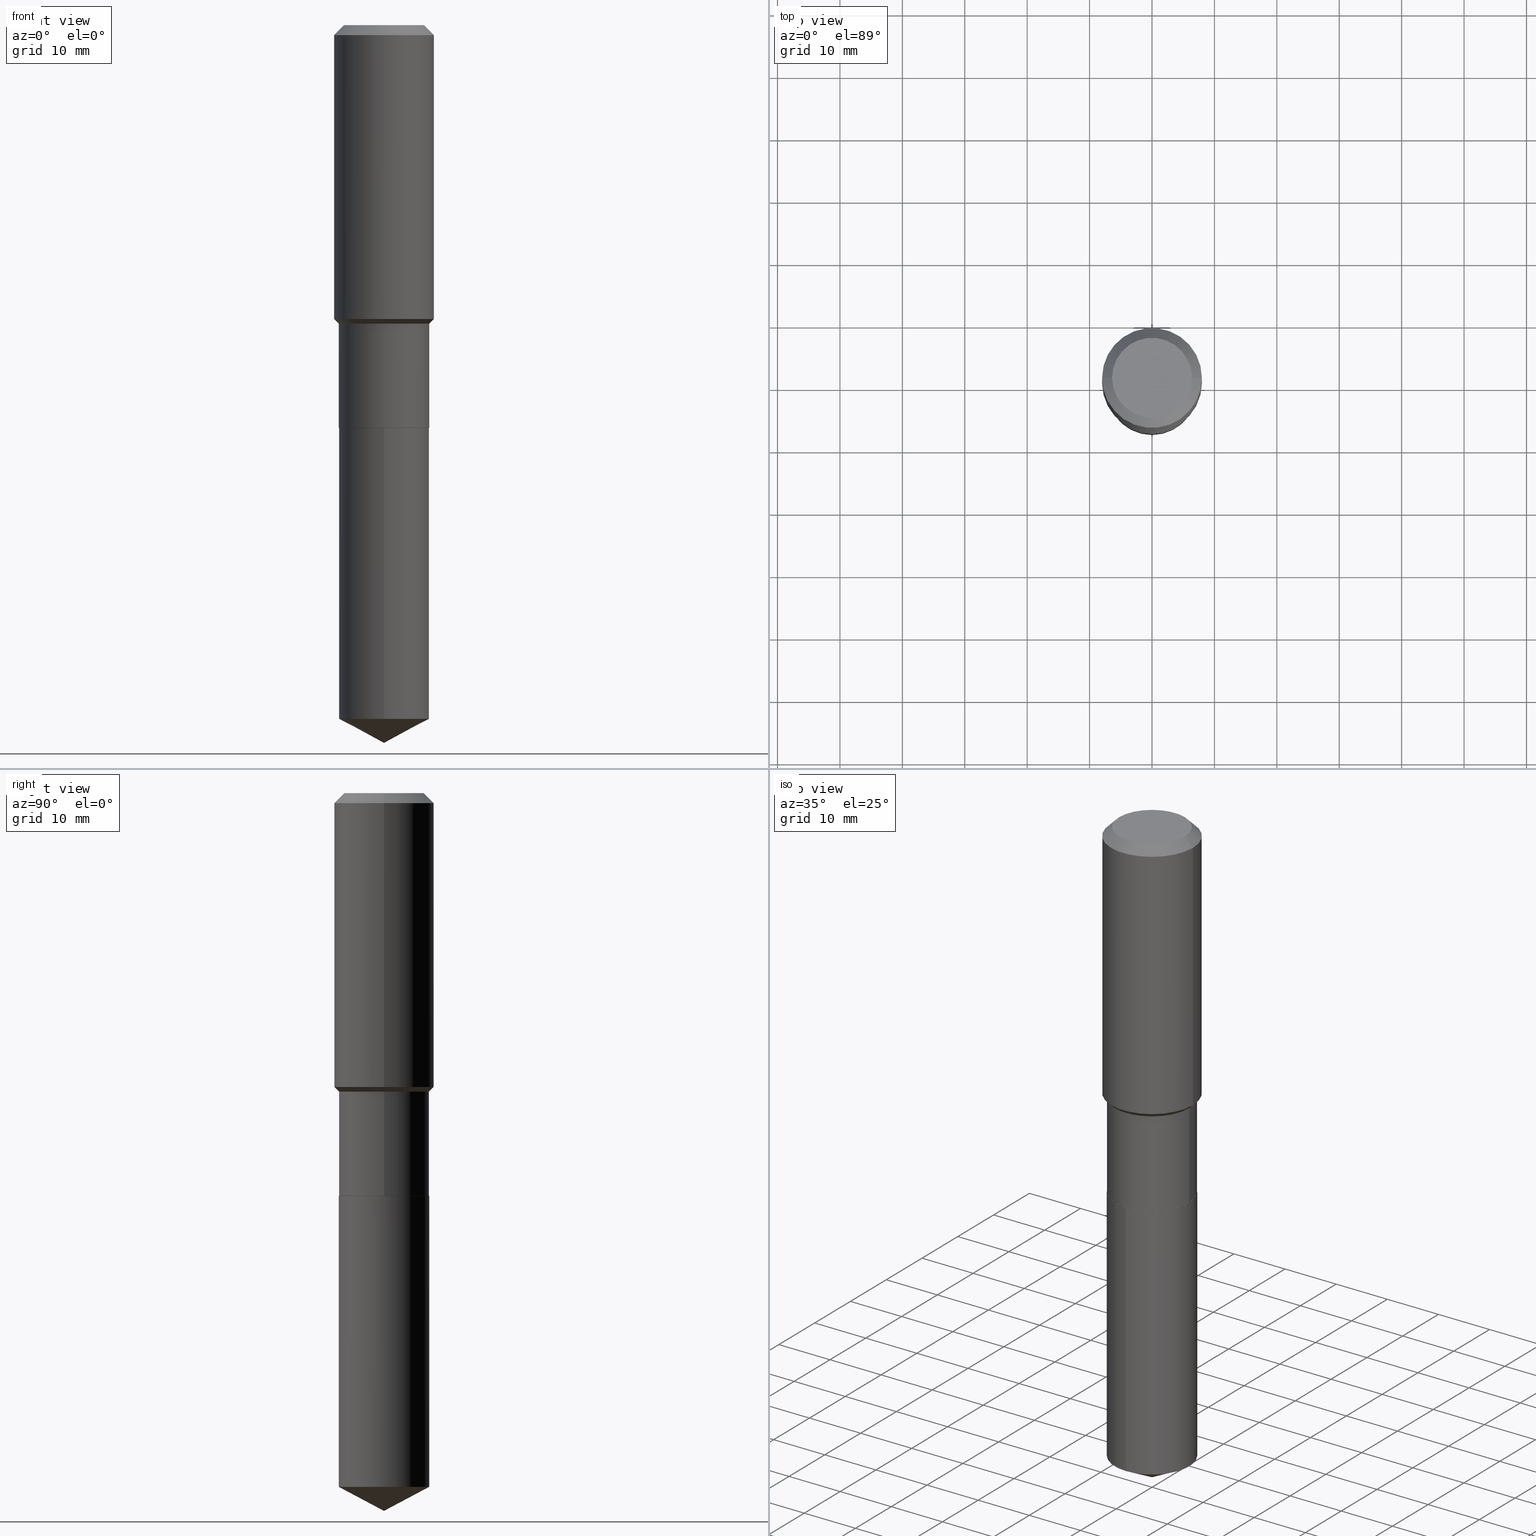
[diagram: canonical four-view strip — front | top / right | iso, engineering-drawing reading convention]
A machine part, canonical four-view strip (front | top / right | iso — engineering-drawing reading convention). The complete STEP part file that produces these views, byte-faithful:
ISO-10303-21;
HEADER;
FILE_DESCRIPTION (( 'STEP AP203' ),
    '1' );
FILE_NAME ('67697.STEP',
    '2024-04-25T09:42:38',
    ( '' ),
    ( '' ),
    'SwSTEP 2.0',
    'SolidWorks 2023',
    '' );
FILE_SCHEMA (( 'CONFIG_CONTROL_DESIGN' ));
ENDSEC;

DATA;
#1 = EDGE_LOOP ( 'NONE', ( #56, #4, #338, #199 ) ) ;
#2 = DIRECTION ( 'NONE',  ( -2.445654511674709390E-29, 3.491215398012376990E-15, 1.000000000000000000 ) ) ;
#3 = LINE ( 'NONE', #375, #60 ) ;
#4 = ORIENTED_EDGE ( 'NONE', *, *, #433, .T. ) ;
#5 = CARTESIAN_POINT ( 'NONE',  ( 0.2854499999999999260, -8.567396909253302236E-15, -1.882899999999999796 ) ) ;
#6 = AXIS2_PLACEMENT_3D ( 'NONE', #238, #385, #389 ) ;
#7 = ADVANCED_FACE ( 'NONE', ( #203 ), #353, .T. ) ;
#8 = ORIENTED_EDGE ( 'NONE', *, *, #330, .T. ) ;
#9 = ADVANCED_FACE ( 'NONE', ( #122 ), #239, .T. ) ;
#10 = CARTESIAN_POINT ( 'NONE',  ( -1.993286696345482241E-15, -0.2854500000000088078, -2.539399999999998769 ) ) ;
#11 = APPROVAL_STATUS ( 'not_yet_approved' ) ;
#12 = ORIENTED_EDGE ( 'NONE', *, *, #119, .F. ) ;
#13 = VECTOR ( 'NONE', #253, 39.37007874015748143 ) ;
#14 = ORIENTED_EDGE ( 'NONE', *, *, #329, .T. ) ;
#15 = DIRECTION ( 'NONE',  ( 1.000000000000000000, -6.982962677686266711E-15, 4.876115136096691995E-29 ) ) ;
#16 = DESIGN_CONTEXT ( 'detailed design', #227, 'design' ) ;
#17 = EDGE_CURVE ( 'NONE', #110, #309, #278, .T. ) ;
#18 = LINE ( 'NONE', #294, #324 ) ;
#19 = VECTOR ( 'NONE', #307, 39.37007874015748143 ) ;
#20 = PRODUCT_DEFINITION ( 'UNKNOWN', '', #197, #16 ) ;
#21 = AXIS2_PLACEMENT_3D ( 'NONE', #229, #151, #302 ) ;
#22 = CARTESIAN_POINT ( 'NONE',  ( -0.2519600000000000173, 1.869391481036695286E-15, 3.855188123703182704E-18 ) ) ;
#23 = CIRCLE ( 'NONE', #448, 0.2854499999999999815 ) ;
#24 = ORIENTED_EDGE ( 'NONE', *, *, #172, .F. ) ;
#25 = CC_DESIGN_PERSON_AND_ORGANIZATION_ASSIGNMENT ( #442, #88, ( #197 ) ) ;
#26 = CARTESIAN_POINT ( 'NONE',  ( 0.2849499999999999811, -1.085606292686498256E-14, -2.539399999999999658 ) ) ;
#27 = EDGE_LOOP ( 'NONE', ( #372, #343, #68, #460 ) ) ;
#28 = DIRECTION ( 'NONE',  ( 0.7071067811865453523, -7.319954787623248157E-15, -0.7071067811865496822 ) ) ;
#29 = CARTESIAN_POINT ( 'NONE',  ( 1.070128100905527205E-28, -1.527761786151748946E-14, -4.375823542732231175 ) ) ;
#30 = VERTEX_POINT ( 'NONE', #104 ) ;
#31 = DIRECTION ( 'NONE',  ( 1.000000000000000000, -6.982962677686265922E-15, 4.876176775795935232E-29 ) ) ;
#32 = EDGE_CURVE ( 'NONE', #295, #156, #287, .T. ) ;
#33 = DIRECTION ( 'NONE',  ( -2.445468806185136597E-29, 3.491481338843145583E-15, 1.000000000000000000 ) ) ;
#34 = AXIS2_PLACEMENT_3D ( 'NONE', #265, #267, #301 ) ;
#35 = CC_DESIGN_DATE_AND_TIME_ASSIGNMENT ( #75, #168, ( #20 ) ) ;
#36 = DIRECTION ( 'NONE',  ( -2.445468806185136597E-29, 3.491481338843145583E-15, 1.000000000000000000 ) ) ;
#37 = CARTESIAN_POINT ( 'NONE',  ( -9.427742298522569579E-47, 1.346031739168368629E-32, 3.855188123715871501E-18 ) ) ;
#38 = EDGE_CURVE ( 'NONE', #30, #380, #217, .T. ) ;
#39 = VECTOR ( 'NONE', #65, 39.37007874015748143 ) ;
#40 = EDGE_LOOP ( 'NONE', ( #423, #46, #485, #296 ) ) ;
#41 = CARTESIAN_POINT ( 'NONE',  ( 6.210023486426534966E-29, -8.866267711858282579E-15, -2.539399999999999658 ) ) ;
#42 = ORIENTED_EDGE ( 'NONE', *, *, #330, .F. ) ;
#43 = PERSON_AND_ORGANIZATION ( #344, #289 ) ;
#44 = ORIENTED_EDGE ( 'NONE', *, *, #379, .F. ) ;
#45 = VERTEX_POINT ( 'NONE', #100 ) ;
#46 = ORIENTED_EDGE ( 'NONE', *, *, #420, .F. ) ;
#47 = EDGE_LOOP ( 'NONE', ( #117, #457, #469, #216 ) ) ;
#48 = CARTESIAN_POINT ( 'NONE',  ( 6.210023486426534966E-29, -8.866267711858282579E-15, -2.539399999999999658 ) ) ;
#49 = FACE_OUTER_BOUND ( 'NONE', #269, .T. ) ;
#50 = PERSON_AND_ORGANIZATION_ROLE ( 'design_owner' ) ;
#51 = CIRCLE ( 'NONE', #323, 0.2854499999999999815 ) ;
#52 = FACE_OUTER_BOUND ( 'NONE', #417, .T. ) ;
#53 = CARTESIAN_POINT ( 'NONE',  ( 6.210023486426534966E-29, -8.866267711858282579E-15, -2.539399999999999658 ) ) ;
#54 = CARTESIAN_POINT ( 'NONE',  ( 6.210023486426534966E-29, -8.866267711858282579E-15, -2.539399999999999658 ) ) ;
#55 = PERSON_AND_ORGANIZATION ( #344, #289 ) ;
#56 = ORIENTED_EDGE ( 'NONE', *, *, #198, .F. ) ;
#57 = CARTESIAN_POINT ( 'NONE',  ( 0.3149500000000002298, -8.670395608749174891E-15, -1.853399999999999492 ) ) ;
#58 = EDGE_CURVE ( 'NONE', #123, #110, #445, .T. ) ;
#59 = DIRECTION ( 'NONE',  ( -1.000000000000000000, 6.982962677686266711E-15, 0.000000000000000000 ) ) ;
#60 = VECTOR ( 'NONE', #149, 39.37007874015748143 ) ;
#61 = ADVANCED_FACE ( 'NONE', ( #113 ), #409, .T. ) ;
#62 = CARTESIAN_POINT ( 'NONE',  ( 4.604573215165993234E-29, -6.574110212907758463E-15, -1.882899999999999796 ) ) ;
#63 = DIRECTION ( 'NONE',  ( -2.445468806185136597E-29, 3.491481338843145583E-15, 1.000000000000000000 ) ) ;
#64 = SECURITY_CLASSIFICATION ( '', '', #91 ) ;
#65 = DIRECTION ( 'NONE',  ( -0.7071067811865453523, 2.468850131082234184E-15, -0.7071067811865496822 ) ) ;
#66 = VERTEX_POINT ( 'NONE', #148 ) ;
#67 = CARTESIAN_POINT ( 'NONE',  ( 0.2854499999999999260, -8.567396909253302236E-15, -1.882899999999999796 ) ) ;
#68 = ORIENTED_EDGE ( 'NONE', *, *, #259, .F. ) ;
#69 = CARTESIAN_POINT ( 'NONE',  ( 0.2849499999999999811, -1.085606292686498256E-14, -2.539399999999999658 ) ) ;
#70 = CARTESIAN_POINT ( 'NONE',  ( 1.107295363746742606E-28, -1.580682683604083442E-14, -4.527599999999999625 ) ) ;
#71 = AXIS2_PLACEMENT_3D ( 'NONE', #237, #421, #273 ) ;
#72 = LOCAL_TIME ( 5, 42, 38.00000000000000000, #364 ) ;
#73 = DIRECTION ( 'NONE',  ( 1.000000000000000000, 0.000000000000000000, 0.000000000000000000 ) ) ;
#74 = EDGE_CURVE ( 'NONE', #66, #45, #412, .T. ) ;
#75 = DATE_AND_TIME ( #276, #157 ) ;
#76 = PLANE ( 'NONE',  #204 ) ;
#77 = AXIS2_PLACEMENT_3D ( 'NONE', #382, #36, #192 ) ;
#78 = APPLICATION_PROTOCOL_DEFINITION ( 'international standard', 'config_control_design', 1994, #127 ) ;
#79 = ORIENTED_EDGE ( 'NONE', *, *, #371, .F. ) ;
#80 =( GEOMETRIC_REPRESENTATION_CONTEXT ( 3 ) GLOBAL_UNCERTAINTY_ASSIGNED_CONTEXT ( ( #155 ) ) GLOBAL_UNIT_ASSIGNED_CONTEXT ( ( #303, #384, #422 ) ) REPRESENTATION_CONTEXT ( 'NONE', 'WORKASPACE' ) );
#81 = COORDINATED_UNIVERSAL_TIME_OFFSET ( 5, 0, .BEHIND. ) ;
#82 = EDGE_LOOP ( 'NONE', ( #392, #355, #173, #138 ) ) ;
#83 = DIRECTION ( 'NONE',  ( -2.445468806185136877E-29, 3.491481338843145188E-15, 1.000000000000000000 ) ) ;
#84 = ADVANCED_BREP_SHAPE_REPRESENTATION ( '67697', ( #326, #331, #128 ), #80 ) ;
#85 = DIRECTION ( 'NONE',  ( -2.445468806185136597E-29, 3.491481338843145583E-15, 1.000000000000000000 ) ) ;
#86 = CARTESIAN_POINT ( 'NONE',  ( 0.000000000000000000, 0.000000000000000000, 0.000000000000000000 ) ) ;
#87 = PLANE ( 'NONE',  #340 ) ;
#88 = PERSON_AND_ORGANIZATION_ROLE ( 'creator' ) ;
#89 = ORIENTED_EDGE ( 'NONE', *, *, #158, .F. ) ;
#90 = AXIS2_PLACEMENT_3D ( 'NONE', #37, #194, #350 ) ;
#91 = SECURITY_CLASSIFICATION_LEVEL ( 'unclassified' ) ;
#92 = ORIENTED_EDGE ( 'NONE', *, *, #102, .F. ) ;
#93 = FACE_OUTER_BOUND ( 'NONE', #47, .T. ) ;
#94 = DIRECTION ( 'NONE',  ( 1.000000000000000000, -6.982962677686266711E-15, 0.000000000000000000 ) ) ;
#95 = DIRECTION ( 'NONE',  ( -2.445468806185136597E-29, 3.491481338843145583E-15, 1.000000000000000000 ) ) ;
#96 = CARTESIAN_POINT ( 'NONE',  ( -0.3149500000000001743, 2.237854346276436774E-15, -1.549218606675783237E-29 ) ) ;
#97 = CIRCLE ( 'NONE', #71, 0.3149500000000002298 ) ;
#98 = LOCAL_TIME ( 5, 42, 38.00000000000000000, #235 ) ;
#99 = CARTESIAN_POINT ( 'NONE',  ( -0.3149500000000000077, -1.107665615196370664E-15, -0.06299000000000037902 ) ) ;
#100 = CARTESIAN_POINT ( 'NONE',  ( 2.028244239227312346E-15, 0.2854499999999847160, -4.375823542732232951 ) ) ;
#101 = ORIENTED_EDGE ( 'NONE', *, *, #347, .T. ) ;
#102 = EDGE_CURVE ( 'NONE', #262, #241, #467, .T. ) ;
#103 = CARTESIAN_POINT ( 'NONE',  ( 0.2519600000000000173, -2.054606664725195058E-15, 3.855188123729206640E-18 ) ) ;
#104 = CARTESIAN_POINT ( 'NONE',  ( 2.028244239227313134E-15, 0.2854499999999910997, -2.539400000000000990 ) ) ;
#105 = VECTOR ( 'NONE', #319, 39.37007874015748143 ) ;
#106 = AXIS2_PLACEMENT_3D ( 'NONE', #468, #440, #362 ) ;
#107 = CARTESIAN_POINT ( 'NONE',  ( 4.532431885383530839E-29, -6.471111513411883442E-15, -1.853399999999999492 ) ) ;
#108 = LINE ( 'NONE', #26, #19 ) ;
#109 = ADVANCED_FACE ( 'NONE', ( #213 ), #255, .T. ) ;
#110 = VERTEX_POINT ( 'NONE', #99 ) ;
#111 = CARTESIAN_POINT ( 'NONE',  ( 0.2854500000000000370, -1.085780866753440485E-14, -2.538899999999999491 ) ) ;
#112 = ADVANCED_FACE ( 'NONE', ( #370 ), #304, .T. ) ;
#113 = FACE_OUTER_BOUND ( 'NONE', #464, .T. ) ;
#114 = VECTOR ( 'NONE', #222, 39.37007874015748143 ) ;
#115 = FACE_OUTER_BOUND ( 'NONE', #404, .T. ) ;
#116 = ORIENTED_EDGE ( 'NONE', *, *, #327, .T. ) ;
#117 = ORIENTED_EDGE ( 'NONE', *, *, #190, .T. ) ;
#118 = CC_DESIGN_PERSON_AND_ORGANIZATION_ASSIGNMENT ( #352, #315, ( #20 ) ) ;
#119 = EDGE_CURVE ( 'NONE', #490, #241, #133, .T. ) ;
#120 = EDGE_CURVE ( 'NONE', #241, #295, #3, .T. ) ;
#121 = EDGE_LOOP ( 'NONE', ( #450, #434, #387, #139 ) ) ;
#122 = FACE_OUTER_BOUND ( 'NONE', #27, .T. ) ;
#123 = VERTEX_POINT ( 'NONE', #416 ) ;
#124 = EDGE_CURVE ( 'NONE', #311, #262, #108, .T. ) ;
#125 = CONICAL_SURFACE ( 'NONE', #403, 0.2849499999999999811, 0.7853981633973118326 ) ;
#126 = EDGE_CURVE ( 'NONE', #241, #262, #187, .T. ) ;
#127 = APPLICATION_CONTEXT ( 'configuration controlled 3d designs of mechanical parts and assemblies' ) ;
#128 = AXIS2_PLACEMENT_3D ( 'NONE', #86, #161, #73 ) ;
#129 = ADVANCED_FACE ( 'NONE', ( #115 ), #125, .T. ) ;
#130 = DATE_AND_TIME ( #325, #72 ) ;
#131 = ADVANCED_FACE ( 'NONE', ( #342 ), #196, .T. ) ;
#132 = EDGE_CURVE ( 'NONE', #295, #123, #335, .T. ) ;
#133 = LINE ( 'NONE', #449, #349 ) ;
#134 = LINE ( 'NONE', #136, #367 ) ;
#135 = DIRECTION ( 'NONE',  ( 6.273719981627766865E-15, 0.8829475928589298750, 0.4694715627858851992 ) ) ;
#136 = CARTESIAN_POINT ( 'NONE',  ( 0.3149500000000000077, -2.380642253931875190E-15, -0.06299000000000037902 ) ) ;
#137 = APPROVAL_ROLE ( '' ) ;
#138 = ORIENTED_EDGE ( 'NONE', *, *, #393, .F. ) ;
#139 = ORIENTED_EDGE ( 'NONE', *, *, #32, .F. ) ;
#140 = DIRECTION ( 'NONE',  ( -0.7071067811865471286, 7.493145998870352582E-15, 0.7071067811865479058 ) ) ;
#141 = DIRECTION ( 'NONE',  ( -2.445468806185136597E-29, 3.491481338843145583E-15, 1.000000000000000000 ) ) ;
#142 = CLOSED_SHELL ( 'NONE', ( #458, #112, #131, #7, #406 ) ) ;
#143 = ADVANCED_FACE ( 'NONE', ( #234 ), #146, .T. ) ;
#144 = AXIS2_PLACEMENT_3D ( 'NONE', #188, #33, #223 ) ;
#145 = CC_DESIGN_APPROVAL ( #242, ( #64 ) ) ;
#146 = CYLINDRICAL_SURFACE ( 'NONE', #77, 0.3149500000000001743 ) ;
#147 = ORIENTED_EDGE ( 'NONE', *, *, #124, .F. ) ;
#148 = CARTESIAN_POINT ( 'NONE',  ( 1.107294536705841246E-28, -1.580682683604083442E-14, -4.527599999999999625 ) ) ;
#149 = DIRECTION ( 'NONE',  ( -2.445468806185136877E-29, 3.491481338843145188E-15, 1.000000000000000000 ) ) ;
#150 = ORIENTED_EDGE ( 'NONE', *, *, #433, .F. ) ;
#151 = DIRECTION ( 'NONE',  ( -2.445468806185136597E-29, 3.491481338843145583E-15, 1.000000000000000000 ) ) ;
#152 = DIRECTION ( 'NONE',  ( -2.445654511674709390E-29, 3.491215398012376990E-15, 1.000000000000000000 ) ) ;
#153 = CARTESIAN_POINT ( 'NONE',  ( 6.210023486426534966E-29, -8.866267711858282579E-15, -2.539399999999999658 ) ) ;
#154 = AXIS2_PLACEMENT_3D ( 'NONE', #186, #152, #274 ) ;
#155 = UNCERTAINTY_MEASURE_WITH_UNIT (LENGTH_MEASURE( 1.000000000000000082E-05 ), #303, 'distance_accuracy_value', 'NONE');
#156 = VERTEX_POINT ( 'NONE', #5 ) ;
#157 = LOCAL_TIME ( 5, 42, 38.00000000000000000, #159 ) ;
#158 = EDGE_CURVE ( 'NONE', #280, #110, #456, .T. ) ;
#159 = COORDINATED_UNIVERSAL_TIME_OFFSET ( 5, 0, .BEHIND. ) ;
#160 = PRODUCT ( '67697', '67697', '', ( #165 ) ) ;
#161 = DIRECTION ( 'NONE',  ( 0.000000000000000000, 0.000000000000000000, 1.000000000000000000 ) ) ;
#162 = ORIENTED_EDGE ( 'NONE', *, *, #102, .T. ) ;
#163 = DIRECTION ( 'NONE',  ( -2.445654511674709390E-29, 3.491215398012376990E-15, 1.000000000000000000 ) ) ;
#164 = AXIS2_PLACEMENT_3D ( 'NONE', #291, #369, #59 ) ;
#165 = MECHANICAL_CONTEXT ( 'NONE', #127, 'mechanical' ) ;
#166 = EDGE_LOOP ( 'NONE', ( #275, #336, #345, #89 ) ) ;
#167 = CONICAL_SURFACE ( 'NONE', #106, 0.3149500000000000077, 0.7853981633974452814 ) ;
#168 = DATE_TIME_ROLE ( 'creation_date' ) ;
#169 = ORIENTED_EDGE ( 'NONE', *, *, #126, .F. ) ;
#170 = CARTESIAN_POINT ( 'NONE',  ( 2.028244239227267380E-15, 0.2854499999999910997, -2.539400000000000990 ) ) ;
#171 = CARTESIAN_POINT ( 'NONE',  ( 1.540400801016026505E-30, -2.199284095337310628E-16, -0.06299000000000037902 ) ) ;
#172 = EDGE_CURVE ( 'NONE', #66, #411, #184, .T. ) ;
#173 = ORIENTED_EDGE ( 'NONE', *, *, #472, .F. ) ;
#174 = CONICAL_SURFACE ( 'NONE', #34, 0.2849499999999999811, 0.7853981633973118326 ) ;
#175 = CC_DESIGN_PERSON_AND_ORGANIZATION_ASSIGNMENT ( #55, #209, ( #64 ) ) ;
#176 = CARTESIAN_POINT ( 'NONE',  ( 1.070128100905527205E-28, -1.527761786151748946E-14, -4.375823542732231175 ) ) ;
#177 = LINE ( 'NONE', #477, #256 ) ;
#178 = PRODUCT_RELATED_PRODUCT_CATEGORY ( 'detail', '', ( #160 ) ) ;
#179 = CYLINDRICAL_SURFACE ( 'NONE', #298, 0.2854499999999999815 ) ;
#180 = AXIS2_PLACEMENT_3D ( 'NONE', #107, #405, #260 ) ;
#181 = CARTESIAN_POINT ( 'NONE',  ( -0.2854499999999999260, -5.691071852821103920E-15, -1.882899999999999796 ) ) ;
#182 = DIRECTION ( 'NONE',  ( -2.445468806185136597E-29, 3.491481338843145583E-15, 1.000000000000000000 ) ) ;
#183 = ORIENTED_EDGE ( 'NONE', *, *, #38, .T. ) ;
#184 = LINE ( 'NONE', #454, #488 ) ;
#185 = EDGE_CURVE ( 'NONE', #156, #224, #407, .T. ) ;
#186 = CARTESIAN_POINT ( 'NONE',  ( -8.521313690931651071E-28, 1.216419229524110261E-13, 34.84247874015748181 ) ) ;
#187 = CIRCLE ( 'NONE', #226, 0.2854500000000000370 ) ;
#188 = CARTESIAN_POINT ( 'NONE',  ( 4.604573215165993234E-29, -6.574110212907758463E-15, -1.882899999999999796 ) ) ;
#189 = DIRECTION ( 'NONE',  ( -2.445468806185136597E-29, 3.491481338843145583E-15, 1.000000000000000000 ) ) ;
#190 = EDGE_CURVE ( 'NONE', #411, #45, #51, .T. ) ;
#191 = CARTESIAN_POINT ( 'NONE',  ( 6.210023486426534966E-29, -8.866267711858282579E-15, -2.539399999999999658 ) ) ;
#192 = DIRECTION ( 'NONE',  ( 1.000000000000000000, -6.982962677686265922E-15, 4.876176775795935232E-29 ) ) ;
#193 = CALENDAR_DATE ( 2024, 25, 4 ) ;
#194 = DIRECTION ( 'NONE',  ( -2.445468806185136597E-29, 3.491481338843145583E-15, 1.000000000000000000 ) ) ;
#195 = AXIS2_PLACEMENT_3D ( 'NONE', #62, #182, #476 ) ;
#196 = CONICAL_SURFACE ( 'NONE', #154, 74.04434902938365326, 1.082104136236487157 ) ;
#197 = PRODUCT_DEFINITION_FORMATION_WITH_SPECIFIED_SOURCE ( 'ANY', '', #160, .NOT_KNOWN. ) ;
#198 = EDGE_CURVE ( 'NONE', #45, #30, #478, .T. ) ;
#199 = ORIENTED_EDGE ( 'NONE', *, *, #38, .F. ) ;
#200 = APPROVAL_DATE_TIME ( #348, #396 ) ;
#201 = DIRECTION ( 'NONE',  ( -2.445654511674709390E-29, 3.491215398012376990E-15, 1.000000000000000000 ) ) ;
#202 = AXIS2_PLACEMENT_3D ( 'NONE', #53, #163, #314 ) ;
#203 = FACE_OUTER_BOUND ( 'NONE', #1, .T. ) ;
#204 = AXIS2_PLACEMENT_3D ( 'NONE', #41, #306, #383 ) ;
#205 = APPROVAL_PERSON_ORGANIZATION ( #446, #271, #254 ) ;
#206 = PERSON_AND_ORGANIZATION_ROLE ( 'design_supplier' ) ;
#207 = DIRECTION ( 'NONE',  ( 1.000000000000000000, -6.982962677686265922E-15, 4.876176775795935232E-29 ) ) ;
#208 = EDGE_LOOP ( 'NONE', ( #162, #243, #240, #44 ) ) ;
#209 = PERSON_AND_ORGANIZATION_ROLE ( 'classification_officer' ) ;
#210 = PERSON_AND_ORGANIZATION ( #344, #289 ) ;
#211 = CARTESIAN_POINT ( 'NONE',  ( -8.521313690931651071E-28, 1.216419229524110261E-13, 34.84247874015748181 ) ) ;
#212 = CC_DESIGN_APPROVAL ( #271, ( #197 ) ) ;
#213 = FACE_OUTER_BOUND ( 'NONE', #40, .T. ) ;
#214 = DIRECTION ( 'NONE',  ( -2.445468806185136597E-29, 3.491481338843145583E-15, 1.000000000000000000 ) ) ;
#215 = DIRECTION ( 'NONE',  ( 1.000000000000000000, -6.982962677686267499E-15, 0.000000000000000000 ) ) ;
#216 = ORIENTED_EDGE ( 'NONE', *, *, #483, .F. ) ;
#217 = CIRCLE ( 'NONE', #333, 0.2854499999999999815 ) ;
#218 = CIRCLE ( 'NONE', #299, 0.3149500000000000077 ) ;
#219 = ORIENTED_EDGE ( 'NONE', *, *, #74, .F. ) ;
#220 = PRODUCT_DEFINITION_SHAPE ( 'NONE', 'NONE',  #20 ) ;
#221 = DIRECTION ( 'NONE',  ( 2.438088387897960049E-29, -3.491481338843145188E-15, -1.000000000000000000 ) ) ;
#222 = DIRECTION ( 'NONE',  ( 0.7071067811865471286, -2.468850131082252722E-15, 0.7071067811865479058 ) ) ;
#223 = DIRECTION ( 'NONE',  ( 1.000000000000000000, -6.982962677686267499E-15, 0.000000000000000000 ) ) ;
#224 = VERTEX_POINT ( 'NONE', #57 ) ;
#225 = ADVANCED_FACE ( 'NONE', ( #52 ), #399, .F. ) ;
#226 = AXIS2_PLACEMENT_3D ( 'NONE', #463, #261, #459 ) ;
#227 = APPLICATION_CONTEXT ( 'configuration controlled 3d designs of mechanical parts and assemblies' ) ;
#228 = VECTOR ( 'NONE', #430, 39.37007874015748143 ) ;
#229 = CARTESIAN_POINT ( 'NONE',  ( 6.210023486426534966E-29, -8.866267711858282579E-15, -2.539399999999999658 ) ) ;
#230 = DIRECTION ( 'NONE',  ( 1.000000000000000000, -6.982962677686263555E-15, 0.000000000000000000 ) ) ;
#231 = ORIENTED_EDGE ( 'NONE', *, *, #190, .F. ) ;
#232 = CC_DESIGN_DATE_AND_TIME_ASSIGNMENT ( #130, #290, ( #64 ) ) ;
#233 = DIRECTION ( 'NONE',  ( -2.445468806185136597E-29, 3.491481338843145583E-15, 1.000000000000000000 ) ) ;
#234 = FACE_OUTER_BOUND ( 'NONE', #82, .T. ) ;
#235 = COORDINATED_UNIVERSAL_TIME_OFFSET ( 5, 0, .BEHIND. ) ;
#236 = ORIENTED_EDGE ( 'NONE', *, *, #58, .F. ) ;
#237 = CARTESIAN_POINT ( 'NONE',  ( 4.532431885383530839E-29, -6.471111513411883442E-15, -1.853399999999999492 ) ) ;
#238 = CARTESIAN_POINT ( 'NONE',  ( 6.210023486426534966E-29, -8.866267711858282579E-15, -2.539399999999999658 ) ) ;
#239 = CONICAL_SURFACE ( 'NONE', #397, 0.2854499999999999260, 0.7853981633974477239 ) ;
#240 = ORIENTED_EDGE ( 'NONE', *, *, #317, .F. ) ;
#241 = VERTEX_POINT ( 'NONE', #452 ) ;
#242 = APPROVAL ( #328, 'UNSPECIFIED' ) ;
#243 = ORIENTED_EDGE ( 'NONE', *, *, #120, .T. ) ;
#244 = CARTESIAN_POINT ( 'NONE',  ( -0.2849499999999999811, -6.838926959135765639E-15, -2.539399999999999658 ) ) ;
#245 = ORIENTED_EDGE ( 'NONE', *, *, #119, .T. ) ;
#246 = DIRECTION ( 'NONE',  ( -2.445468806185136597E-29, 3.491481338843145583E-15, 1.000000000000000000 ) ) ;
#247 = AXIS2_PLACEMENT_3D ( 'NONE', #153, #2, #429 ) ;
#248 = COORDINATED_UNIVERSAL_TIME_OFFSET ( 5, 0, .BEHIND. ) ;
#249 = CC_DESIGN_PERSON_AND_ORGANIZATION_ASSIGNMENT ( #466, #50, ( #160 ) ) ;
#250 = CARTESIAN_POINT ( 'NONE',  ( -1.993286696345437276E-15, -0.2854500000000152471, -4.375823542732230287 ) ) ;
#251 = DIMENSIONAL_EXPONENTS ( 1.000000000000000000, 0.000000000000000000, 0.000000000000000000, 0.000000000000000000, 0.000000000000000000, 0.000000000000000000, 0.000000000000000000 ) ;
#252 = LINE ( 'NONE', #10, #228 ) ;
#253 = DIRECTION ( 'NONE',  ( -2.445468806185136877E-29, 3.491481338843145188E-15, 1.000000000000000000 ) ) ;
#254 = APPROVAL_ROLE ( '' ) ;
#255 = CONICAL_SURFACE ( 'NONE', #164, 0.3149500000000000077, 0.7853981633974452814 ) ;
#256 = VECTOR ( 'NONE', #441, 39.37007874015748143 ) ;
#257 = DIRECTION ( 'NONE',  ( -6.982962677686265922E-15, -1.000000000000000000, 3.541896320645555347E-15 ) ) ;
#258 = ADVANCED_FACE ( 'NONE', ( #451 ), #174, .T. ) ;
#259 = EDGE_CURVE ( 'NONE', #224, #123, #453, .T. ) ;
#260 = DIRECTION ( 'NONE',  ( 1.000000000000000000, -6.982962677686268288E-15, 0.000000000000000000 ) ) ;
#261 = DIRECTION ( 'NONE',  ( -2.445468806185136597E-29, 3.491481338843145583E-15, 1.000000000000000000 ) ) ;
#262 = VERTEX_POINT ( 'NONE', #111 ) ;
#263 = VECTOR ( 'NONE', #135, 39.37007874015748143 ) ;
#264 = LOCAL_TIME ( 5, 42, 38.00000000000000000, #81 ) ;
#265 = CARTESIAN_POINT ( 'NONE',  ( 6.210023486426534966E-29, -8.866267711858282579E-15, -2.539399999999999658 ) ) ;
#266 = DIRECTION ( 'NONE',  ( -6.165590087286836818E-15, -0.8829475928589266553, 0.4694715627858914164 ) ) ;
#267 = DIRECTION ( 'NONE',  ( -2.445468806185136597E-29, 3.491481338843145583E-15, 1.000000000000000000 ) ) ;
#268 = ORIENTED_EDGE ( 'NONE', *, *, #329, .F. ) ;
#269 = EDGE_LOOP ( 'NONE', ( #116, #183 ) ) ;
#270 = VERTEX_POINT ( 'NONE', #103 ) ;
#271 = APPROVAL ( #285, 'UNSPECIFIED' ) ;
#272 = AXIS2_PLACEMENT_3D ( 'NONE', #400, #63, #215 ) ;
#273 = DIRECTION ( 'NONE',  ( 1.000000000000000000, -6.982962677686268288E-15, 0.000000000000000000 ) ) ;
#274 = DIRECTION ( 'NONE',  ( -6.982962677686265922E-15, -1.000000000000000000, 3.541896320645555347E-15 ) ) ;
#275 = ORIENTED_EDGE ( 'NONE', *, *, #347, .F. ) ;
#276 = CALENDAR_DATE ( 2024, 25, 4 ) ;
#277 = LENGTH_MEASURE_WITH_UNIT ( LENGTH_MEASURE( 0.02539999999999999897 ), #292 );
#278 = CIRCLE ( 'NONE', #473, 0.3149500000000000077 ) ;
#279 = ADVANCED_FACE ( 'NONE', ( #376 ), #179, .T. ) ;
#280 = VERTEX_POINT ( 'NONE', #22 ) ;
#281 = APPROVAL_DATE_TIME ( #465, #242 ) ;
#282 = EDGE_LOOP ( 'NONE', ( #12, #428, #486, #169 ) ) ;
#283 = FACE_OUTER_BOUND ( 'NONE', #166, .T. ) ;
#284 = DIRECTION ( 'NONE',  ( 1.000000000000000000, -6.982962677686267499E-15, 0.000000000000000000 ) ) ;
#285 = APPROVAL_STATUS ( 'not_yet_approved' ) ;
#286 = ORIENTED_EDGE ( 'NONE', *, *, #185, .T. ) ;
#287 = CIRCLE ( 'NONE', #195, 0.2854499999999999260 ) ;
#288 = CALENDAR_DATE ( 2024, 25, 4 ) ;
#289 = ORGANIZATION ( 'UNSPECIFIED', 'UNSPECIFIED', '' ) ;
#290 = DATE_TIME_ROLE ( 'classification_date' ) ;
#291 = CARTESIAN_POINT ( 'NONE',  ( 1.540400801016026505E-30, -2.199284095337310628E-16, -0.06299000000000037902 ) ) ;
#292 =( LENGTH_UNIT ( ) NAMED_UNIT ( * ) SI_UNIT ( $, .METRE. ) );
#293 = DIRECTION ( 'NONE',  ( -6.982962677686265922E-15, -1.000000000000000000, 3.828128209723963046E-15 ) ) ;
#294 = CARTESIAN_POINT ( 'NONE',  ( 0.3149500000000001743, -2.199284095337290660E-15, 1.535751875536930690E-29 ) ) ;
#295 = VERTEX_POINT ( 'NONE', #181 ) ;
#296 = ORIENTED_EDGE ( 'NONE', *, *, #17, .T. ) ;
#297 = CARTESIAN_POINT ( 'NONE',  ( -0.3149500000000000077, 1.979355685803558833E-15, -0.06299000000000037902 ) ) ;
#298 = AXIS2_PLACEMENT_3D ( 'NONE', #332, #214, #481 ) ;
#299 = AXIS2_PLACEMENT_3D ( 'NONE', #171, #320, #94 ) ;
#300 = CARTESIAN_POINT ( 'NONE',  ( -4.713871149261284790E-47, 6.730158695841843144E-33, 1.927594061857935750E-18 ) ) ;
#301 = DIRECTION ( 'NONE',  ( 1.000000000000000000, -6.982962677686263555E-15, 0.000000000000000000 ) ) ;
#302 = DIRECTION ( 'NONE',  ( 1.000000000000000000, -6.982962677686263555E-15, 0.000000000000000000 ) ) ;
#303 =( CONVERSION_BASED_UNIT ( 'INCH', #277 ) LENGTH_UNIT ( ) NAMED_UNIT ( #251 ) );
#304 = CONICAL_SURFACE ( 'NONE', #373, 74.04434902938365326, 1.082104136236487157 ) ;
#305 = APPROVAL_PERSON_ORGANIZATION ( #43, #396, #418 ) ;
#306 = DIRECTION ( 'NONE',  ( -2.438088387897960049E-29, 3.491481338843145188E-15, 1.000000000000000000 ) ) ;
#307 = DIRECTION ( 'NONE',  ( 0.7071067811864509833, -2.468850131081245741E-15, 0.7071067811866440511 ) ) ;
#308 = EDGE_CURVE ( 'NONE', #270, #309, #134, .T. ) ;
#309 = VERTEX_POINT ( 'NONE', #410 ) ;
#310 = CC_DESIGN_PERSON_AND_ORGANIZATION_ASSIGNMENT ( #361, #206, ( #197 ) ) ;
#311 = VERTEX_POINT ( 'NONE', #69 ) ;
#312 = DIRECTION ( 'NONE',  ( -2.445468806185136597E-29, 3.491481338843145583E-15, 1.000000000000000000 ) ) ;
#313 = CIRCLE ( 'NONE', #144, 0.2854499999999999260 ) ;
#314 = DIRECTION ( 'NONE',  ( -6.982962677686265133E-15, -1.000000000000000000, 3.828128209723963046E-15 ) ) ;
#315 = PERSON_AND_ORGANIZATION_ROLE ( 'creator' ) ;
#316 = EDGE_LOOP ( 'NONE', ( #24, #431, #231 ) ) ;
#317 = EDGE_CURVE ( 'NONE', #156, #295, #313, .T. ) ;
#318 = DATE_AND_TIME ( #288, #474 ) ;
#319 = DIRECTION ( 'NONE',  ( -2.445654511674709110E-29, 3.491215398012377385E-15, 1.000000000000000000 ) ) ;
#320 = DIRECTION ( 'NONE',  ( -2.445468806185136597E-29, 3.491481338843145583E-15, 1.000000000000000000 ) ) ;
#321 = CARTESIAN_POINT ( 'NONE',  ( 4.604573215165993234E-29, -6.574110212907758463E-15, -1.882899999999999796 ) ) ;
#322 = ORIENTED_EDGE ( 'NONE', *, *, #132, .F. ) ;
#323 = AXIS2_PLACEMENT_3D ( 'NONE', #29, #337, #489 ) ;
#324 = VECTOR ( 'NONE', #83, 39.37007874015748143 ) ;
#325 = CALENDAR_DATE ( 2024, 25, 4 ) ;
#326 = MANIFOLD_SOLID_BREP ( 'Body-Move/Copy2[1]', #142 ) ;
#327 = EDGE_CURVE ( 'NONE', #380, #30, #358, .T. ) ;
#328 = APPROVAL_STATUS ( 'not_yet_approved' ) ;
#329 = EDGE_CURVE ( 'NONE', #311, #490, #425, .T. ) ;
#330 = EDGE_CURVE ( 'NONE', #123, #224, #97, .T. ) ;
#331 = MANIFOLD_SOLID_BREP ( 'Body-Move/Copy2[2]', #424 ) ;
#332 = CARTESIAN_POINT ( 'NONE',  ( 0.000000000000000000, 0.000000000000000000, 0.000000000000000000 ) ) ;
#333 = AXIS2_PLACEMENT_3D ( 'NONE', #482, #484, #293 ) ;
#334 = ADVANCED_FACE ( 'NONE', ( #415 ), #447, .T. ) ;
#335 = LINE ( 'NONE', #402, #401 ) ;
#336 = ORIENTED_EDGE ( 'NONE', *, *, #308, .T. ) ;
#337 = DIRECTION ( 'NONE',  ( -2.445654511674709390E-29, 3.491215398012376990E-15, 1.000000000000000000 ) ) ;
#338 = ORIENTED_EDGE ( 'NONE', *, *, #483, .T. ) ;
#339 = AXIS2_PLACEMENT_3D ( 'NONE', #487, #141, #31 ) ;
#340 = AXIS2_PLACEMENT_3D ( 'NONE', #54, #363, #470 ) ;
#341 = ADVANCED_FACE ( 'NONE', ( #461 ), #76, .F. ) ;
#342 = FACE_OUTER_BOUND ( 'NONE', #413, .T. ) ;
#343 = ORIENTED_EDGE ( 'NONE', *, *, #132, .T. ) ;
#344 = PERSON ( 'UNSPECIFIED', 'UNSPECIFIED', 'UNSPECIFIED', ('UNSPECIFIED'), ('UNSPECIFIED'), ('UNSPECIFIED') ) ;
#345 = ORIENTED_EDGE ( 'NONE', *, *, #472, .T. ) ;
#346 = CALENDAR_DATE ( 2024, 25, 4 ) ;
#347 = EDGE_CURVE ( 'NONE', #270, #280, #480, .T. ) ;
#348 = DATE_AND_TIME ( #193, #98 ) ;
#349 = VECTOR ( 'NONE', #398, 39.37007874015748143 ) ;
#350 = DIRECTION ( 'NONE',  ( 1.000000000000000000, -6.982962677686266711E-15, 4.876115136096691995E-29 ) ) ;
#351 = CARTESIAN_POINT ( 'NONE',  ( 4.604573215165993234E-29, -6.574110212907758463E-15, -1.882899999999999796 ) ) ;
#352 = PERSON_AND_ORGANIZATION ( #344, #289 ) ;
#353 = CYLINDRICAL_SURFACE ( 'NONE', #202, 0.2854499999999999815 ) ;
#354 = APPLICATION_PROTOCOL_DEFINITION ( 'international standard', 'config_control_design', 1994, #227 ) ;
#355 = ORIENTED_EDGE ( 'NONE', *, *, #58, .T. ) ;
#356 = ORIENTED_EDGE ( 'NONE', *, *, #32, .T. ) ;
#357 = FACE_OUTER_BOUND ( 'NONE', #121, .T. ) ;
#358 = CIRCLE ( 'NONE', #247, 0.2854499999999999815 ) ;
#359 = CC_DESIGN_SECURITY_CLASSIFICATION ( #64, ( #197 ) ) ;
#360 = CARTESIAN_POINT ( 'NONE',  ( -1.993286696345482241E-15, -0.2854500000000088633, -2.539399999999998769 ) ) ;
#361 = PERSON_AND_ORGANIZATION ( #344, #289 ) ;
#362 = DIRECTION ( 'NONE',  ( -1.000000000000000000, 6.982962677686266711E-15, 0.000000000000000000 ) ) ;
#363 = DIRECTION ( 'NONE',  ( 2.445654511674709110E-29, -3.491215398012377385E-15, -1.000000000000000000 ) ) ;
#364 = COORDINATED_UNIVERSAL_TIME_OFFSET ( 5, 0, .BEHIND. ) ;
#365 = ORIENTED_EDGE ( 'NONE', *, *, #420, .T. ) ;
#366 = CARTESIAN_POINT ( 'NONE',  ( -9.427742298522569579E-47, 1.346031739168368629E-32, 3.855188123715871501E-18 ) ) ;
#367 = VECTOR ( 'NONE', #28, 39.37007874015748143 ) ;
#368 = AXIS2_PLACEMENT_3D ( 'NONE', #48, #201, #443 ) ;
#369 = DIRECTION ( 'NONE',  ( 2.445468806185136597E-29, -3.491481338843145583E-15, -1.000000000000000000 ) ) ;
#370 = FACE_OUTER_BOUND ( 'NONE', #316, .T. ) ;
#371 = EDGE_CURVE ( 'NONE', #490, #311, #437, .T. ) ;
#372 = ORIENTED_EDGE ( 'NONE', *, *, #317, .T. ) ;
#373 = AXIS2_PLACEMENT_3D ( 'NONE', #211, #479, #257 ) ;
#374 = AXIS2_PLACEMENT_3D ( 'NONE', #366, #312, #15 ) ;
#375 = CARTESIAN_POINT ( 'NONE',  ( -0.2854499999999999815, 2.028244239227205849E-15, -1.404110021513262784E-29 ) ) ;
#376 = FACE_OUTER_BOUND ( 'NONE', #208, .T. ) ;
#377 = ADVANCED_FACE ( 'NONE', ( #357 ), #436, .T. ) ;
#378 = ORIENTED_EDGE ( 'NONE', *, *, #17, .F. ) ;
#379 = EDGE_CURVE ( 'NONE', #262, #156, #177, .T. ) ;
#380 = VERTEX_POINT ( 'NONE', #360 ) ;
#381 = DIRECTION ( 'NONE',  ( 1.000000000000000000, -6.982962677686267499E-15, 0.000000000000000000 ) ) ;
#382 = CARTESIAN_POINT ( 'NONE',  ( 0.000000000000000000, 0.000000000000000000, 0.000000000000000000 ) ) ;
#383 = DIRECTION ( 'NONE',  ( 1.000000000000000000, -6.982962677686265922E-15, 4.876176775795935793E-29 ) ) ;
#384 =( NAMED_UNIT ( * ) PLANE_ANGLE_UNIT ( ) SI_UNIT ( $, .RADIAN. ) );
#385 = DIRECTION ( 'NONE',  ( -2.445468806185136597E-29, 3.491481338843145583E-15, 1.000000000000000000 ) ) ;
#386 = ORIENTED_EDGE ( 'NONE', *, *, #172, .T. ) ;
#387 = ORIENTED_EDGE ( 'NONE', *, *, #379, .T. ) ;
#388 = CYLINDRICAL_SURFACE ( 'NONE', #368, 0.2854499999999999815 ) ;
#389 = DIRECTION ( 'NONE',  ( 1.000000000000000000, -6.982962677686263555E-15, 0.000000000000000000 ) ) ;
#390 = AXIS2_PLACEMENT_3D ( 'NONE', #300, #221, #455 ) ;
#391 = CC_DESIGN_APPROVAL ( #396, ( #20 ) ) ;
#392 = ORIENTED_EDGE ( 'NONE', *, *, #259, .T. ) ;
#393 = EDGE_CURVE ( 'NONE', #224, #309, #18, .T. ) ;
#394 = CARTESIAN_POINT ( 'NONE',  ( 1.540400801016026505E-30, -2.199284095337310628E-16, -0.06299000000000037902 ) ) ;
#395 = DIRECTION ( 'NONE',  ( -6.982962677686265133E-15, -1.000000000000000000, 3.828128209723963046E-15 ) ) ;
#396 = APPROVAL ( #11, 'UNSPECIFIED' ) ;
#397 = AXIS2_PLACEMENT_3D ( 'NONE', #321, #85, #284 ) ;
#398 = DIRECTION ( 'NONE',  ( -0.7071067811864509833, 7.493145998870005484E-15, 0.7071067811866440511 ) ) ;
#399 = PLANE ( 'NONE',  #390 ) ;
#400 = CARTESIAN_POINT ( 'NONE',  ( 6.208800752023442165E-29, -8.864521971188860287E-15, -2.538899999999999491 ) ) ;
#401 = VECTOR ( 'NONE', #140, 39.37007874015748143 ) ;
#402 = CARTESIAN_POINT ( 'NONE',  ( -0.2854499999999999260, -4.545865973680552614E-15, -1.882899999999999796 ) ) ;
#403 = AXIS2_PLACEMENT_3D ( 'NONE', #191, #189, #230 ) ;
#404 = EDGE_LOOP ( 'NONE', ( #14, #245, #92, #147 ) ) ;
#405 = DIRECTION ( 'NONE',  ( -2.445468806185136597E-29, 3.491481338843145583E-15, 1.000000000000000000 ) ) ;
#406 = ADVANCED_FACE ( 'NONE', ( #49 ), #87, .F. ) ;
#407 = LINE ( 'NONE', #67, #114 ) ;
#408 = EDGE_LOOP ( 'NONE', ( #268, #79 ) ) ;
#409 = CYLINDRICAL_SURFACE ( 'NONE', #339, 0.3149500000000001743 ) ;
#410 = CARTESIAN_POINT ( 'NONE',  ( 0.3149500000000000077, -2.419212504871020909E-15, -0.06299000000000037902 ) ) ;
#411 = VERTEX_POINT ( 'NONE', #250 ) ;
#412 = LINE ( 'NONE', #70, #263 ) ;
#413 = EDGE_LOOP ( 'NONE', ( #219, #386, #150 ) ) ;
#414 = AXIS2_PLACEMENT_3D ( 'NONE', #351, #233, #381 ) ;
#415 = FACE_OUTER_BOUND ( 'NONE', #427, .T. ) ;
#416 = CARTESIAN_POINT ( 'NONE',  ( -0.3149500000000002298, -4.233257167135447457E-15, -1.853399999999999492 ) ) ;
#417 = EDGE_LOOP ( 'NONE', ( #365, #101 ) ) ;
#418 = APPROVAL_ROLE ( '' ) ;
#419 = ORIENTED_EDGE ( 'NONE', *, *, #393, .T. ) ;
#420 = EDGE_CURVE ( 'NONE', #280, #270, #438, .T. ) ;
#421 = DIRECTION ( 'NONE',  ( -2.445468806185136597E-29, 3.491481338843145583E-15, 1.000000000000000000 ) ) ;
#422 =( NAMED_UNIT ( * ) SI_UNIT ( $, .STERADIAN. ) SOLID_ANGLE_UNIT ( ) );
#423 = ORIENTED_EDGE ( 'NONE', *, *, #308, .F. ) ;
#424 = CLOSED_SHELL ( 'NONE', ( #129, #439, #143, #9, #279, #377, #334, #61, #109, #225, #341, #258 ) ) ;
#425 = CIRCLE ( 'NONE', #21, 0.2849499999999999811 ) ;
#426 = AXIS2_PLACEMENT_3D ( 'NONE', #444, #95, #207 ) ;
#427 = EDGE_LOOP ( 'NONE', ( #322, #356, #286, #42 ) ) ;
#428 = ORIENTED_EDGE ( 'NONE', *, *, #371, .T. ) ;
#429 = DIRECTION ( 'NONE',  ( -6.982962677686265922E-15, -1.000000000000000000, 3.828128209723963046E-15 ) ) ;
#430 = DIRECTION ( 'NONE',  ( -2.445654511674709110E-29, 3.491215398012377385E-15, 1.000000000000000000 ) ) ;
#431 = ORIENTED_EDGE ( 'NONE', *, *, #74, .T. ) ;
#432 = APPROVAL_DATE_TIME ( #318, #271 ) ;
#433 = EDGE_CURVE ( 'NONE', #45, #411, #23, .T. ) ;
#434 = ORIENTED_EDGE ( 'NONE', *, *, #126, .T. ) ;
#435 = DIRECTION ( 'NONE',  ( -2.445654511674709390E-29, 3.491215398012376990E-15, 1.000000000000000000 ) ) ;
#436 = CYLINDRICAL_SURFACE ( 'NONE', #426, 0.2854499999999999815 ) ;
#437 = CIRCLE ( 'NONE', #6, 0.2849499999999999811 ) ;
#438 = CIRCLE ( 'NONE', #374, 0.2519600000000000173 ) ;
#439 = ADVANCED_FACE ( 'NONE', ( #283 ), #167, .T. ) ;
#440 = DIRECTION ( 'NONE',  ( 2.445468806185136597E-29, -3.491481338843145583E-15, -1.000000000000000000 ) ) ;
#441 = DIRECTION ( 'NONE',  ( -2.445468806185136877E-29, 3.491481338843145188E-15, 1.000000000000000000 ) ) ;
#442 = PERSON_AND_ORGANIZATION ( #344, #289 ) ;
#443 = DIRECTION ( 'NONE',  ( -6.982962677686265133E-15, -1.000000000000000000, 3.828128209723963046E-15 ) ) ;
#444 = CARTESIAN_POINT ( 'NONE',  ( 0.000000000000000000, 0.000000000000000000, 0.000000000000000000 ) ) ;
#445 = LINE ( 'NONE', #96, #13 ) ;
#446 = PERSON_AND_ORGANIZATION ( #344, #289 ) ;
#447 = CONICAL_SURFACE ( 'NONE', #414, 0.2854499999999999260, 0.7853981633974477239 ) ;
#448 = AXIS2_PLACEMENT_3D ( 'NONE', #176, #435, #395 ) ;
#449 = CARTESIAN_POINT ( 'NONE',  ( -0.2849499999999999811, -6.841576186309877629E-15, -2.539399999999999658 ) ) ;
#450 = ORIENTED_EDGE ( 'NONE', *, *, #120, .F. ) ;
#451 = FACE_OUTER_BOUND ( 'NONE', #282, .T. ) ;
#452 = CARTESIAN_POINT ( 'NONE',  ( -0.2854500000000000370, -5.691071852821102343E-15, -2.538899999999999491 ) ) ;
#453 = CIRCLE ( 'NONE', #180, 0.3149500000000002298 ) ;
#454 = CARTESIAN_POINT ( 'NONE',  ( 1.107200220601796947E-28, -1.580817749633214477E-14, -4.527599999999999625 ) ) ;
#455 = DIRECTION ( 'NONE',  ( -1.000000000000000000, 6.982962677686265922E-15, -4.876176775795935793E-29 ) ) ;
#456 = LINE ( 'NONE', #297, #39 ) ;
#457 = ORIENTED_EDGE ( 'NONE', *, *, #198, .T. ) ;
#458 = ADVANCED_FACE ( 'NONE', ( #93 ), #388, .T. ) ;
#459 = DIRECTION ( 'NONE',  ( 1.000000000000000000, -6.982962677686267499E-15, 0.000000000000000000 ) ) ;
#460 = ORIENTED_EDGE ( 'NONE', *, *, #185, .F. ) ;
#461 = FACE_OUTER_BOUND ( 'NONE', #408, .T. ) ;
#462 = SHAPE_DEFINITION_REPRESENTATION ( #220, #84 ) ;
#463 = CARTESIAN_POINT ( 'NONE',  ( 6.208800752023442165E-29, -8.864521971188860287E-15, -2.538899999999999491 ) ) ;
#464 = EDGE_LOOP ( 'NONE', ( #236, #8, #419, #378 ) ) ;
#465 = DATE_AND_TIME ( #346, #264 ) ;
#466 = PERSON_AND_ORGANIZATION ( #344, #289 ) ;
#467 = CIRCLE ( 'NONE', #272, 0.2854500000000000370 ) ;
#468 = CARTESIAN_POINT ( 'NONE',  ( 1.540400801016026505E-30, -2.199284095337310628E-16, -0.06299000000000037902 ) ) ;
#469 = ORIENTED_EDGE ( 'NONE', *, *, #327, .F. ) ;
#470 = DIRECTION ( 'NONE',  ( 6.982962677686265922E-15, 1.000000000000000000, -3.491215398012377385E-15 ) ) ;
#471 = DIRECTION ( 'NONE',  ( 1.000000000000000000, -6.982962677686266711E-15, 0.000000000000000000 ) ) ;
#472 = EDGE_CURVE ( 'NONE', #309, #110, #218, .T. ) ;
#473 = AXIS2_PLACEMENT_3D ( 'NONE', #394, #246, #471 ) ;
#474 = LOCAL_TIME ( 5, 42, 38.00000000000000000, #248 ) ;
#475 = APPROVAL_PERSON_ORGANIZATION ( #210, #242, #137 ) ;
#476 = DIRECTION ( 'NONE',  ( 1.000000000000000000, -6.982962677686267499E-15, 0.000000000000000000 ) ) ;
#477 = CARTESIAN_POINT ( 'NONE',  ( 0.2854499999999999815, -1.993286696345544561E-15, 1.391904660650949682E-29 ) ) ;
#478 = LINE ( 'NONE', #170, #105 ) ;
#479 = DIRECTION ( 'NONE',  ( -2.445654511674709390E-29, 3.491215398012376990E-15, 1.000000000000000000 ) ) ;
#480 = CIRCLE ( 'NONE', #90, 0.2519600000000000173 ) ;
#481 = DIRECTION ( 'NONE',  ( 1.000000000000000000, -6.982962677686265922E-15, 4.876176775795935232E-29 ) ) ;
#482 = CARTESIAN_POINT ( 'NONE',  ( 6.210023486426534966E-29, -8.866267711858282579E-15, -2.539399999999999658 ) ) ;
#483 = EDGE_CURVE ( 'NONE', #411, #380, #252, .T. ) ;
#484 = DIRECTION ( 'NONE',  ( -2.445654511674709390E-29, 3.491215398012376990E-15, 1.000000000000000000 ) ) ;
#485 = ORIENTED_EDGE ( 'NONE', *, *, #158, .T. ) ;
#486 = ORIENTED_EDGE ( 'NONE', *, *, #124, .T. ) ;
#487 = CARTESIAN_POINT ( 'NONE',  ( 0.000000000000000000, 0.000000000000000000, 0.000000000000000000 ) ) ;
#488 = VECTOR ( 'NONE', #266, 39.37007874015748854 ) ;
#489 = DIRECTION ( 'NONE',  ( -6.982962677686265133E-15, -1.000000000000000000, 3.828128209723963046E-15 ) ) ;
#490 = VERTEX_POINT ( 'NONE', #244 ) ;
ENDSEC;
END-ISO-10303-21;
